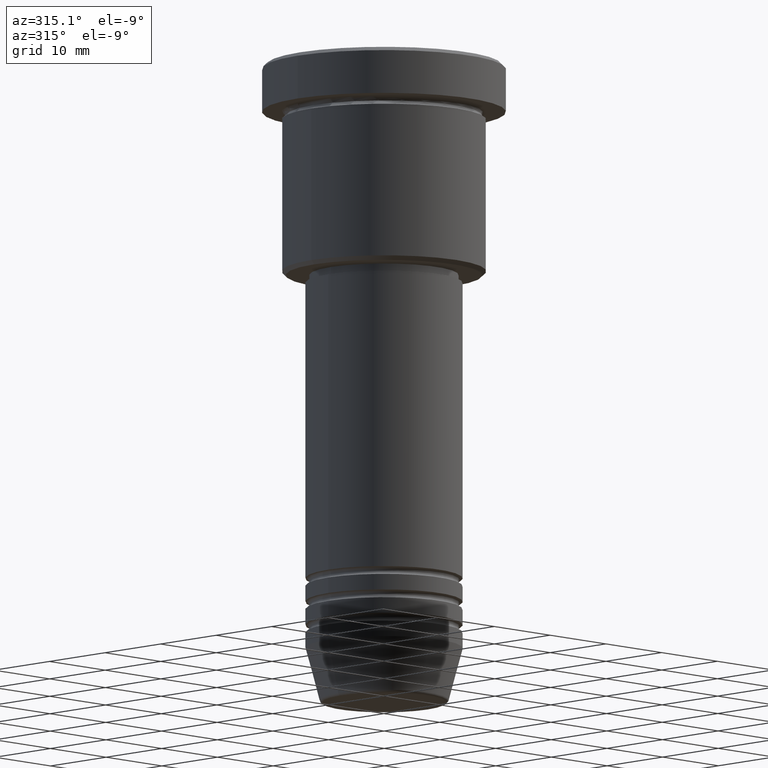
[diagram: clean part render]
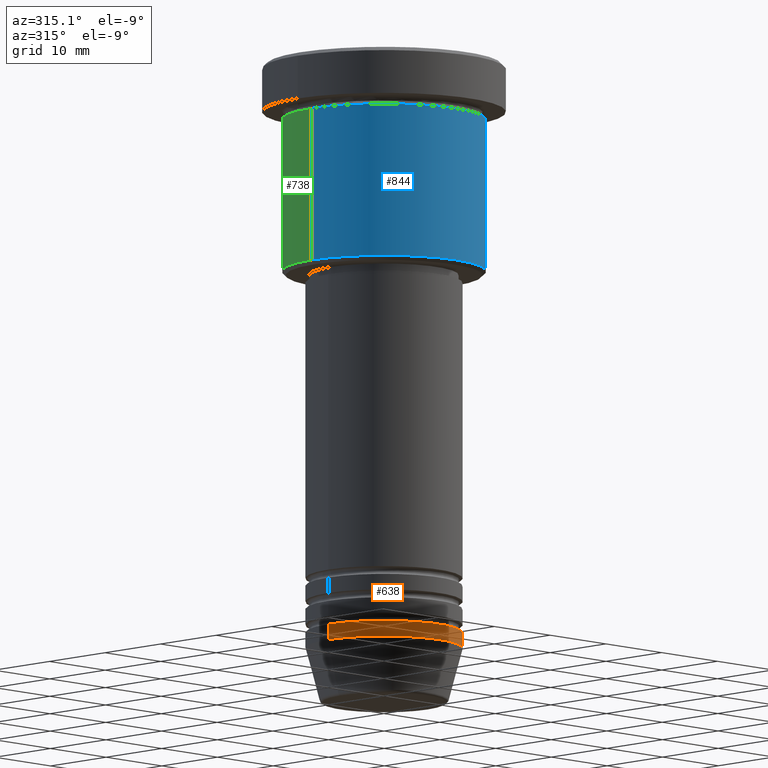
[diagram: same view with three faces highlighted in distinct colors, each labeled with its STEP entity id]
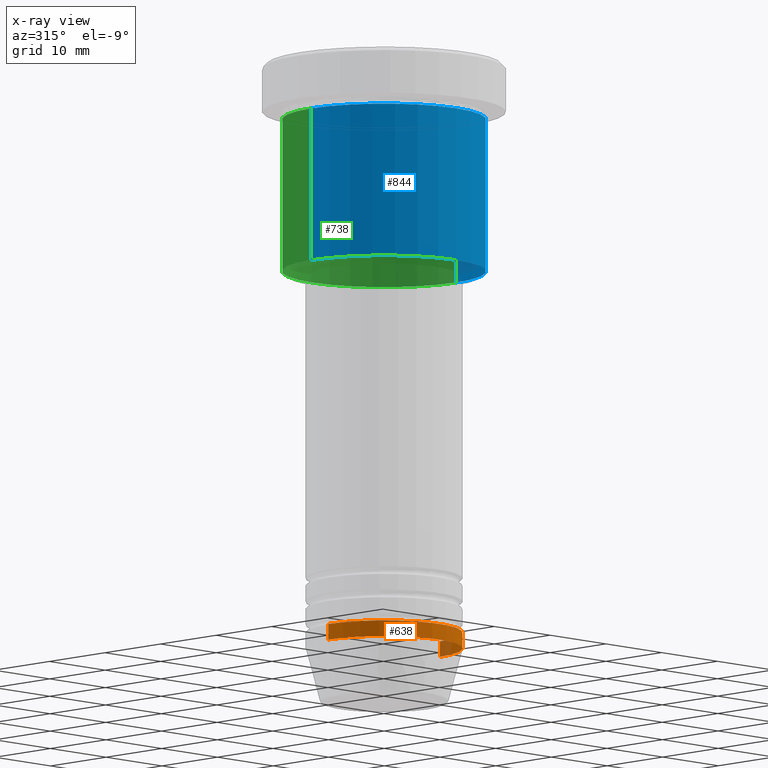
[diagram: x-ray of the same camera — body ghosted, the three highlighted faces saturated]
A machine part, auxiliary view with three faces highlighted in distinct colors.
The next image is the same camera in x-ray (body ghosted, the three faces saturated) — at least one of them is partly hidden behind the body in this view.
Their STEP definitions:

[orange] entity #638 — the highlighted cylindrical surface (partial cylindrical patch) has radius 10 mm, axis along (-0, -0, 1).
#25 = ORIENTED_EDGE ( 'NONE', *, *, #1010, .F. ) ;
#29 = EDGE_CURVE ( 'NONE', #68, #635, #519, .T. ) ;
#59 = DIRECTION ( 'NONE',  ( -0.000000000000000000, -0.000000000000000000, 1.000000000000000000 ) ) ;
#65 = DIRECTION ( 'NONE',  ( -0.000000000000000000, -0.000000000000000000, 1.000000000000000000 ) ) ;
#68 = VERTEX_POINT ( 'NONE', #239 ) ;
#82 = EDGE_CURVE ( 'NONE', #1092, #974, #634, .T. ) ;
#94 = ORIENTED_EDGE ( 'NONE', *, *, #757, .T. ) ;
#150 = CARTESIAN_POINT ( 'NONE',  ( 10.00000000000000000, 0.000000000000000000, 0.000000000000000000 ) ) ;
#175 = VECTOR ( 'NONE', #232, 1000.000000000000000 ) ;
#210 = AXIS2_PLACEMENT_3D ( 'NONE', #647, #833, #480 ) ;
#222 = CARTESIAN_POINT ( 'NONE',  ( 0.000000000000000000, 0.000000000000000000, -73.00000000000001421 ) ) ;
#232 = DIRECTION ( 'NONE',  ( -0.000000000000000000, -0.000000000000000000, 1.000000000000000000 ) ) ;
#239 = CARTESIAN_POINT ( 'NONE',  ( -10.00000000000000000, 1.224646799147353256E-15, -73.00000000000001421 ) ) ;
#245 = AXIS2_PLACEMENT_3D ( 'NONE', #329, #65, #516 ) ;
#255 = LINE ( 'NONE', #628, #260 ) ;
#260 = VECTOR ( 'NONE', #59, 1000.000000000000000 ) ;
#329 = CARTESIAN_POINT ( 'NONE',  ( 0.000000000000000000, 0.000000000000000000, -75.00000000000001421 ) ) ;
#398 = FACE_OUTER_BOUND ( 'NONE', #714, .T. ) ;
#448 = CARTESIAN_POINT ( 'NONE',  ( -10.00000000000000000, 1.224646799147353256E-15, -75.00000000000001421 ) ) ;
#480 = DIRECTION ( 'NONE',  ( 1.000000000000000000, 0.000000000000000000, 0.000000000000000000 ) ) ;
#510 = CARTESIAN_POINT ( 'NONE',  ( 10.00000000000000000, 0.000000000000000000, -75.00000000000001421 ) ) ;
#516 = DIRECTION ( 'NONE',  ( 1.000000000000000000, 0.000000000000000000, 0.000000000000000000 ) ) ;
#519 = CIRCLE ( 'NONE', #1026, 10.00000000000000000 ) ;
#601 = DIRECTION ( 'NONE',  ( -0.000000000000000000, -0.000000000000000000, 1.000000000000000000 ) ) ;
#628 = CARTESIAN_POINT ( 'NONE',  ( -10.00000000000000000, 1.224646799147353256E-15, 0.000000000000000000 ) ) ;
#634 = CIRCLE ( 'NONE', #245, 10.00000000000000000 ) ;
#635 = VERTEX_POINT ( 'NONE', #851 ) ;
#638 = ADVANCED_FACE ( 'NONE', ( #398 ), #759, .T. ) ;
#647 = CARTESIAN_POINT ( 'NONE',  ( 0.000000000000000000, 0.000000000000000000, 0.000000000000000000 ) ) ;
#705 = DIRECTION ( 'NONE',  ( 1.000000000000000000, 0.000000000000000000, 0.000000000000000000 ) ) ;
#714 = EDGE_LOOP ( 'NONE', ( #25, #933, #94, #1075 ) ) ;
#757 = EDGE_CURVE ( 'NONE', #974, #635, #1049, .T. ) ;
#759 = CYLINDRICAL_SURFACE ( 'NONE', #210, 10.00000000000000000 ) ;
#833 = DIRECTION ( 'NONE',  ( -0.000000000000000000, -0.000000000000000000, 1.000000000000000000 ) ) ;
#851 = CARTESIAN_POINT ( 'NONE',  ( 10.00000000000000000, 0.000000000000000000, -73.00000000000001421 ) ) ;
#933 = ORIENTED_EDGE ( 'NONE', *, *, #82, .T. ) ;
#974 = VERTEX_POINT ( 'NONE', #510 ) ;
#1010 = EDGE_CURVE ( 'NONE', #1092, #68, #255, .T. ) ;
#1026 = AXIS2_PLACEMENT_3D ( 'NONE', #222, #601, #705 ) ;
#1049 = LINE ( 'NONE', #150, #175 ) ;
#1075 = ORIENTED_EDGE ( 'NONE', *, *, #29, .F. ) ;
#1092 = VERTEX_POINT ( 'NONE', #448 ) ;

[blue] entity #844 — the highlighted cylindrical surface (partial cylindrical patch) has radius 13 mm, axis along (-0, -0, 1).
#10 = CARTESIAN_POINT ( 'NONE',  ( 13.00000000000000000, 0.000000000000000000, -26.49999999999999645 ) ) ;
#47 = DIRECTION ( 'NONE',  ( -0.000000000000000000, -0.000000000000000000, 1.000000000000000000 ) ) ;
#95 = DIRECTION ( 'NONE',  ( -0.000000000000000000, -0.000000000000000000, 1.000000000000000000 ) ) ;
#105 = VERTEX_POINT ( 'NONE', #977 ) ;
#115 = AXIS2_PLACEMENT_3D ( 'NONE', #878, #683, #778 ) ;
#122 = ORIENTED_EDGE ( 'NONE', *, *, #792, .T. ) ;
#132 = AXIS2_PLACEMENT_3D ( 'NONE', #871, #47, #437 ) ;
#214 = ORIENTED_EDGE ( 'NONE', *, *, #387, .T. ) ;
#216 = AXIS2_PLACEMENT_3D ( 'NONE', #551, #95, #905 ) ;
#274 = DIRECTION ( 'NONE',  ( -0.000000000000000000, -0.000000000000000000, 1.000000000000000000 ) ) ;
#355 = VECTOR ( 'NONE', #274, 1000.000000000000000 ) ;
#368 = LINE ( 'NONE', #731, #355 ) ;
#387 = EDGE_CURVE ( 'NONE', #105, #883, #465, .T. ) ;
#437 = DIRECTION ( 'NONE',  ( 1.000000000000000000, 0.000000000000000000, 0.000000000000000000 ) ) ;
#449 = EDGE_CURVE ( 'NONE', #889, #816, #689, .T. ) ;
#455 = FACE_OUTER_BOUND ( 'NONE', #649, .T. ) ;
#465 = CIRCLE ( 'NONE', #115, 13.00000000000000000 ) ;
#468 = LINE ( 'NONE', #824, #471 ) ;
#471 = VECTOR ( 'NONE', #993, 1000.000000000000000 ) ;
#551 = CARTESIAN_POINT ( 'NONE',  ( 0.000000000000000000, 0.000000000000000000, 0.000000000000000000 ) ) ;
#649 = EDGE_LOOP ( 'NONE', ( #885, #214, #122, #1038 ) ) ;
#651 = CARTESIAN_POINT ( 'NONE',  ( -13.00000000000000000, 1.592040838891559095E-15, -6.999999999999995559 ) ) ;
#683 = DIRECTION ( 'NONE',  ( -0.000000000000000000, -0.000000000000000000, 1.000000000000000000 ) ) ;
#689 = CIRCLE ( 'NONE', #132, 13.00000000000000000 ) ;
#731 = CARTESIAN_POINT ( 'NONE',  ( 13.00000000000000000, 0.000000000000000000, 0.000000000000000000 ) ) ;
#778 = DIRECTION ( 'NONE',  ( -1.000000000000000000, 0.000000000000000000, 0.000000000000000000 ) ) ;
#792 = EDGE_CURVE ( 'NONE', #883, #816, #368, .T. ) ;
#816 = VERTEX_POINT ( 'NONE', #922 ) ;
#824 = CARTESIAN_POINT ( 'NONE',  ( -13.00000000000000000, 1.592040838891559095E-15, 0.000000000000000000 ) ) ;
#844 = ADVANCED_FACE ( 'NONE', ( #455 ), #909, .T. ) ;
#871 = CARTESIAN_POINT ( 'NONE',  ( 0.000000000000000000, 0.000000000000000000, -6.999999999999995559 ) ) ;
#878 = CARTESIAN_POINT ( 'NONE',  ( 0.000000000000000000, 0.000000000000000000, -26.49999999999999645 ) ) ;
#883 = VERTEX_POINT ( 'NONE', #10 ) ;
#884 = EDGE_CURVE ( 'NONE', #105, #889, #468, .T. ) ;
#885 = ORIENTED_EDGE ( 'NONE', *, *, #884, .F. ) ;
#889 = VERTEX_POINT ( 'NONE', #651 ) ;
#905 = DIRECTION ( 'NONE',  ( 1.000000000000000000, 0.000000000000000000, 0.000000000000000000 ) ) ;
#909 = CYLINDRICAL_SURFACE ( 'NONE', #216, 13.00000000000000000 ) ;
#922 = CARTESIAN_POINT ( 'NONE',  ( 13.00000000000000000, 0.000000000000000000, -6.999999999999995559 ) ) ;
#977 = CARTESIAN_POINT ( 'NONE',  ( -13.00000000000000000, 1.592040838891559095E-15, -26.49999999999999645 ) ) ;
#993 = DIRECTION ( 'NONE',  ( -0.000000000000000000, -0.000000000000000000, 1.000000000000000000 ) ) ;
#1038 = ORIENTED_EDGE ( 'NONE', *, *, #449, .F. ) ;

[green] entity #738 — the highlighted cylindrical surface (partial cylindrical patch) has radius 13 mm, axis along (-0, -0, 1).
#10 = CARTESIAN_POINT ( 'NONE',  ( 13.00000000000000000, 0.000000000000000000, -26.49999999999999645 ) ) ;
#11 = EDGE_LOOP ( 'NONE', ( #894, #795, #765, #978 ) ) ;
#16 = EDGE_CURVE ( 'NONE', #816, #889, #1158, .T. ) ;
#41 = CARTESIAN_POINT ( 'NONE',  ( 0.000000000000000000, 0.000000000000000000, 0.000000000000000000 ) ) ;
#105 = VERTEX_POINT ( 'NONE', #977 ) ;
#156 = DIRECTION ( 'NONE',  ( -0.000000000000000000, -0.000000000000000000, 1.000000000000000000 ) ) ;
#218 = CYLINDRICAL_SURFACE ( 'NONE', #783, 13.00000000000000000 ) ;
#274 = DIRECTION ( 'NONE',  ( -0.000000000000000000, -0.000000000000000000, 1.000000000000000000 ) ) ;
#323 = CARTESIAN_POINT ( 'NONE',  ( 0.000000000000000000, 0.000000000000000000, -26.49999999999999645 ) ) ;
#355 = VECTOR ( 'NONE', #274, 1000.000000000000000 ) ;
#368 = LINE ( 'NONE', #731, #355 ) ;
#418 = DIRECTION ( 'NONE',  ( -1.000000000000000000, 0.000000000000000000, 0.000000000000000000 ) ) ;
#468 = LINE ( 'NONE', #824, #471 ) ;
#471 = VECTOR ( 'NONE', #993, 1000.000000000000000 ) ;
#489 = CARTESIAN_POINT ( 'NONE',  ( 0.000000000000000000, 0.000000000000000000, -6.999999999999995559 ) ) ;
#576 = DIRECTION ( 'NONE',  ( -0.000000000000000000, -0.000000000000000000, 1.000000000000000000 ) ) ;
#600 = AXIS2_PLACEMENT_3D ( 'NONE', #489, #576, #1035 ) ;
#629 = AXIS2_PLACEMENT_3D ( 'NONE', #323, #156, #418 ) ;
#651 = CARTESIAN_POINT ( 'NONE',  ( -13.00000000000000000, 1.592040838891559095E-15, -6.999999999999995559 ) ) ;
#677 = DIRECTION ( 'NONE',  ( -0.000000000000000000, -0.000000000000000000, 1.000000000000000000 ) ) ;
#700 = FACE_OUTER_BOUND ( 'NONE', #11, .T. ) ;
#731 = CARTESIAN_POINT ( 'NONE',  ( 13.00000000000000000, 0.000000000000000000, 0.000000000000000000 ) ) ;
#738 = ADVANCED_FACE ( 'NONE', ( #700 ), #218, .T. ) ;
#765 = ORIENTED_EDGE ( 'NONE', *, *, #16, .F. ) ;
#783 = AXIS2_PLACEMENT_3D ( 'NONE', #41, #677, #877 ) ;
#792 = EDGE_CURVE ( 'NONE', #883, #816, #368, .T. ) ;
#795 = ORIENTED_EDGE ( 'NONE', *, *, #884, .T. ) ;
#816 = VERTEX_POINT ( 'NONE', #922 ) ;
#824 = CARTESIAN_POINT ( 'NONE',  ( -13.00000000000000000, 1.592040838891559095E-15, 0.000000000000000000 ) ) ;
#877 = DIRECTION ( 'NONE',  ( 1.000000000000000000, 0.000000000000000000, 0.000000000000000000 ) ) ;
#883 = VERTEX_POINT ( 'NONE', #10 ) ;
#884 = EDGE_CURVE ( 'NONE', #105, #889, #468, .T. ) ;
#889 = VERTEX_POINT ( 'NONE', #651 ) ;
#894 = ORIENTED_EDGE ( 'NONE', *, *, #948, .T. ) ;
#922 = CARTESIAN_POINT ( 'NONE',  ( 13.00000000000000000, 0.000000000000000000, -6.999999999999995559 ) ) ;
#948 = EDGE_CURVE ( 'NONE', #883, #105, #1135, .T. ) ;
#977 = CARTESIAN_POINT ( 'NONE',  ( -13.00000000000000000, 1.592040838891559095E-15, -26.49999999999999645 ) ) ;
#978 = ORIENTED_EDGE ( 'NONE', *, *, #792, .F. ) ;
#993 = DIRECTION ( 'NONE',  ( -0.000000000000000000, -0.000000000000000000, 1.000000000000000000 ) ) ;
#1035 = DIRECTION ( 'NONE',  ( 1.000000000000000000, 0.000000000000000000, 0.000000000000000000 ) ) ;
#1135 = CIRCLE ( 'NONE', #629, 13.00000000000000000 ) ;
#1158 = CIRCLE ( 'NONE', #600, 13.00000000000000000 ) ;